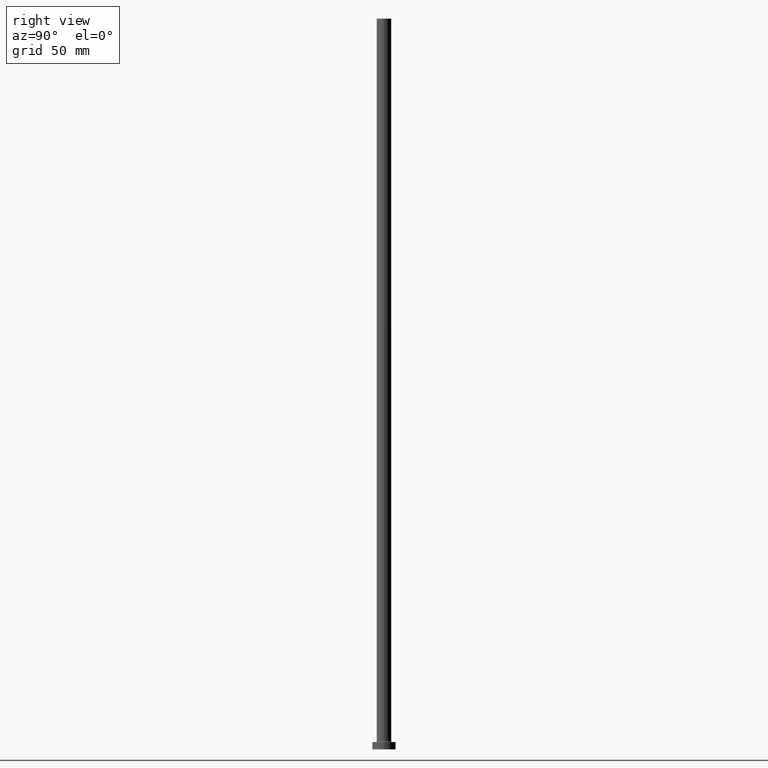
[diagram: clean part render]
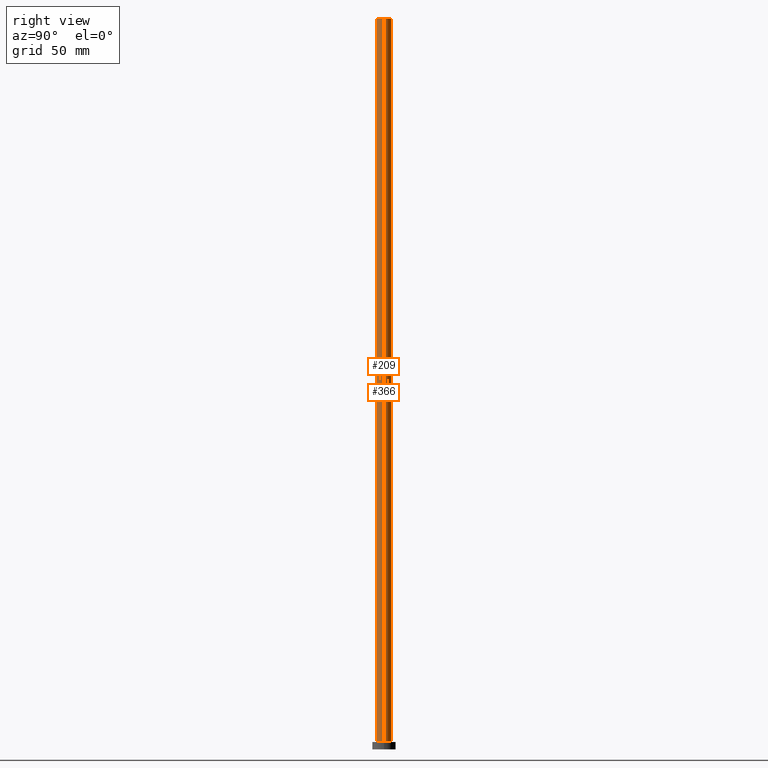
[diagram: same view with one multi-face feature highlighted, each face labeled with its STEP entity id]
A machine part, right view. The highlighted faces form ONE feature: a constant-radius fillet chain: 2 tangent blend faces with common blend radius 5 mm. The faces share edges in the B-rep.
Their STEP definitions:
[1] entity #366 (Cylinder):
#5 = ORIENTED_EDGE ( 'NONE', *, *, #241, .F. ) ;
#17 = EDGE_CURVE ( 'NONE', #45, #265, #317, .T. ) ;
#19 = CARTESIAN_POINT ( 'NONE',  ( -5.000000000000000000, 0.000000000000000000, 500.0000000000000000 ) ) ;
#34 = ORIENTED_EDGE ( 'NONE', *, *, #361, .T. ) ;
#41 = CARTESIAN_POINT ( 'NONE',  ( 0.000000000000000000, 0.000000000000000000, 500.0000000000000000 ) ) ;
#44 = DIRECTION ( 'NONE',  ( 0.000000000000000000, 0.000000000000000000, 1.000000000000000000 ) ) ;
#45 = VERTEX_POINT ( 'NONE', #352 ) ;
#55 = CARTESIAN_POINT ( 'NONE',  ( -5.000000000000000000, 0.000000000000000000, 500.0000000000000000 ) ) ;
#70 = CYLINDRICAL_SURFACE ( 'NONE', #370, 5.000000000000000000 ) ;
#93 = LINE ( 'NONE', #381, #211 ) ;
#97 = CARTESIAN_POINT ( 'NONE',  ( 0.000000000000000000, 0.000000000000000000, 5.500000000000005329 ) ) ;
#101 = DIRECTION ( 'NONE',  ( -1.000000000000000000, 0.000000000000000000, 0.000000000000000000 ) ) ;
#129 = EDGE_LOOP ( 'NONE', ( #236, #425, #34, #5 ) ) ;
#134 = CARTESIAN_POINT ( 'NONE',  ( 0.000000000000000000, 0.000000000000000000, 500.0000000000000000 ) ) ;
#139 = DIRECTION ( 'NONE',  ( -0.000000000000000000, -0.000000000000000000, -1.000000000000000000 ) ) ;
#142 = FACE_OUTER_BOUND ( 'NONE', #129, .T. ) ;
#158 = LINE ( 'NONE', #55, #237 ) ;
#168 = DIRECTION ( 'NONE',  ( -0.000000000000000000, -0.000000000000000000, -1.000000000000000000 ) ) ;
#210 = DIRECTION ( 'NONE',  ( 1.000000000000000000, 0.000000000000000000, 0.000000000000000000 ) ) ;
#211 = VECTOR ( 'NONE', #168, 1000.000000000000000 ) ;
#215 = CARTESIAN_POINT ( 'NONE',  ( -5.000000000000000000, 0.000000000000000000, 5.500000000000005329 ) ) ;
#236 = ORIENTED_EDGE ( 'NONE', *, *, #17, .F. ) ;
#237 = VECTOR ( 'NONE', #397, 1000.000000000000000 ) ;
#241 = EDGE_CURVE ( 'NONE', #265, #380, #158, .T. ) ;
#265 = VERTEX_POINT ( 'NONE', #19 ) ;
#268 = CIRCLE ( 'NONE', #395, 5.000000000000000000 ) ;
#316 = DIRECTION ( 'NONE',  ( 0.000000000000000000, 0.000000000000000000, 1.000000000000000000 ) ) ;
#317 = CIRCLE ( 'NONE', #362, 5.000000000000000000 ) ;
#345 = EDGE_CURVE ( 'NONE', #45, #457, #93, .T. ) ;
#352 = CARTESIAN_POINT ( 'NONE',  ( 5.000000000000000000, 6.123233995736766282E-16, 500.0000000000000000 ) ) ;
#361 = EDGE_CURVE ( 'NONE', #457, #380, #268, .T. ) ;
#362 = AXIS2_PLACEMENT_3D ( 'NONE', #134, #44, #210 ) ;
#366 = ADVANCED_FACE ( 'NONE', ( #142 ), #70, .T. ) ;
#370 = AXIS2_PLACEMENT_3D ( 'NONE', #41, #139, #101 ) ;
#380 = VERTEX_POINT ( 'NONE', #215 ) ;
#381 = CARTESIAN_POINT ( 'NONE',  ( 5.000000000000000000, 6.123233995736766282E-16, 500.0000000000000000 ) ) ;
#395 = AXIS2_PLACEMENT_3D ( 'NONE', #97, #316, #434 ) ;
#397 = DIRECTION ( 'NONE',  ( -0.000000000000000000, -0.000000000000000000, -1.000000000000000000 ) ) ;
#425 = ORIENTED_EDGE ( 'NONE', *, *, #345, .T. ) ;
#434 = DIRECTION ( 'NONE',  ( 1.000000000000000000, 0.000000000000000000, 0.000000000000000000 ) ) ;
#457 = VERTEX_POINT ( 'NONE', #459 ) ;
#459 = CARTESIAN_POINT ( 'NONE',  ( 5.000000000000000000, 6.123233995736766282E-16, 5.500000000000005329 ) ) ;
[2] entity #209 (Cylinder):
#4 = AXIS2_PLACEMENT_3D ( 'NONE', #438, #177, #320 ) ;
#19 = CARTESIAN_POINT ( 'NONE',  ( -5.000000000000000000, 0.000000000000000000, 500.0000000000000000 ) ) ;
#39 = ORIENTED_EDGE ( 'NONE', *, *, #345, .F. ) ;
#45 = VERTEX_POINT ( 'NONE', #352 ) ;
#55 = CARTESIAN_POINT ( 'NONE',  ( -5.000000000000000000, 0.000000000000000000, 500.0000000000000000 ) ) ;
#61 = DIRECTION ( 'NONE',  ( 0.000000000000000000, 0.000000000000000000, 1.000000000000000000 ) ) ;
#87 = AXIS2_PLACEMENT_3D ( 'NONE', #399, #364, #286 ) ;
#92 = ORIENTED_EDGE ( 'NONE', *, *, #116, .T. ) ;
#93 = LINE ( 'NONE', #381, #211 ) ;
#98 = EDGE_LOOP ( 'NONE', ( #39, #157, #99, #92 ) ) ;
#99 = ORIENTED_EDGE ( 'NONE', *, *, #241, .T. ) ;
#115 = DIRECTION ( 'NONE',  ( 1.000000000000000000, 0.000000000000000000, 0.000000000000000000 ) ) ;
#116 = EDGE_CURVE ( 'NONE', #380, #457, #234, .T. ) ;
#157 = ORIENTED_EDGE ( 'NONE', *, *, #389, .F. ) ;
#158 = LINE ( 'NONE', #55, #237 ) ;
#168 = DIRECTION ( 'NONE',  ( -0.000000000000000000, -0.000000000000000000, -1.000000000000000000 ) ) ;
#177 = DIRECTION ( 'NONE',  ( 0.000000000000000000, 0.000000000000000000, 1.000000000000000000 ) ) ;
#209 = ADVANCED_FACE ( 'NONE', ( #301 ), #260, .T. ) ;
#211 = VECTOR ( 'NONE', #168, 1000.000000000000000 ) ;
#215 = CARTESIAN_POINT ( 'NONE',  ( -5.000000000000000000, 0.000000000000000000, 5.500000000000005329 ) ) ;
#234 = CIRCLE ( 'NONE', #384, 5.000000000000000000 ) ;
#237 = VECTOR ( 'NONE', #397, 1000.000000000000000 ) ;
#241 = EDGE_CURVE ( 'NONE', #265, #380, #158, .T. ) ;
#249 = CIRCLE ( 'NONE', #4, 5.000000000000000000 ) ;
#260 = CYLINDRICAL_SURFACE ( 'NONE', #87, 5.000000000000000000 ) ;
#265 = VERTEX_POINT ( 'NONE', #19 ) ;
#286 = DIRECTION ( 'NONE',  ( -1.000000000000000000, 0.000000000000000000, 0.000000000000000000 ) ) ;
#301 = FACE_OUTER_BOUND ( 'NONE', #98, .T. ) ;
#320 = DIRECTION ( 'NONE',  ( 1.000000000000000000, 0.000000000000000000, 0.000000000000000000 ) ) ;
#345 = EDGE_CURVE ( 'NONE', #45, #457, #93, .T. ) ;
#352 = CARTESIAN_POINT ( 'NONE',  ( 5.000000000000000000, 6.123233995736766282E-16, 500.0000000000000000 ) ) ;
#364 = DIRECTION ( 'NONE',  ( -0.000000000000000000, -0.000000000000000000, -1.000000000000000000 ) ) ;
#380 = VERTEX_POINT ( 'NONE', #215 ) ;
#381 = CARTESIAN_POINT ( 'NONE',  ( 5.000000000000000000, 6.123233995736766282E-16, 500.0000000000000000 ) ) ;
#384 = AXIS2_PLACEMENT_3D ( 'NONE', #446, #61, #115 ) ;
#389 = EDGE_CURVE ( 'NONE', #265, #45, #249, .T. ) ;
#397 = DIRECTION ( 'NONE',  ( -0.000000000000000000, -0.000000000000000000, -1.000000000000000000 ) ) ;
#399 = CARTESIAN_POINT ( 'NONE',  ( 0.000000000000000000, 0.000000000000000000, 500.0000000000000000 ) ) ;
#438 = CARTESIAN_POINT ( 'NONE',  ( 0.000000000000000000, 0.000000000000000000, 500.0000000000000000 ) ) ;
#446 = CARTESIAN_POINT ( 'NONE',  ( 0.000000000000000000, 0.000000000000000000, 5.500000000000005329 ) ) ;
#457 = VERTEX_POINT ( 'NONE', #459 ) ;
#459 = CARTESIAN_POINT ( 'NONE',  ( 5.000000000000000000, 6.123233995736766282E-16, 5.500000000000005329 ) ) ;